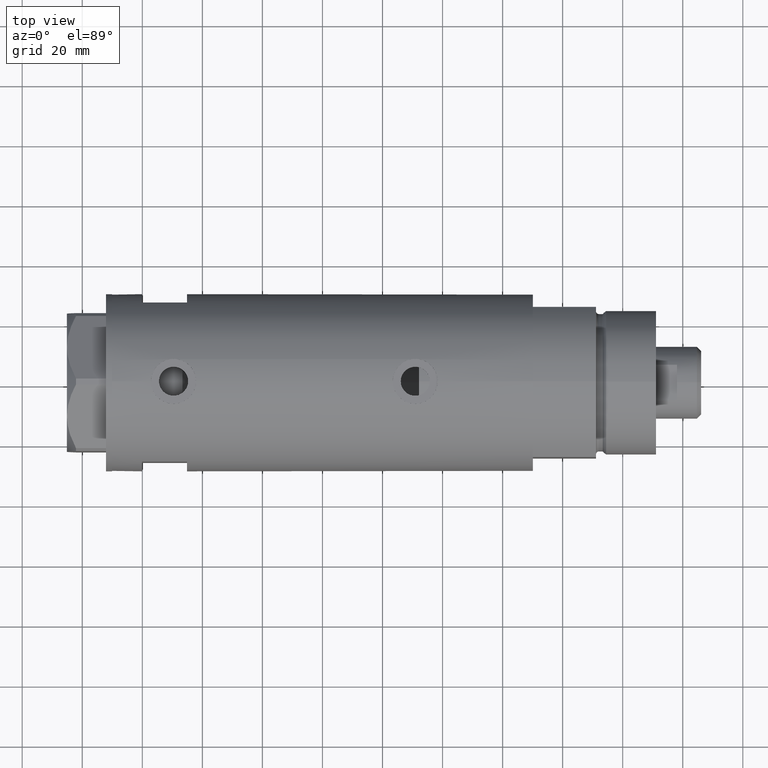
[diagram: clean part render]
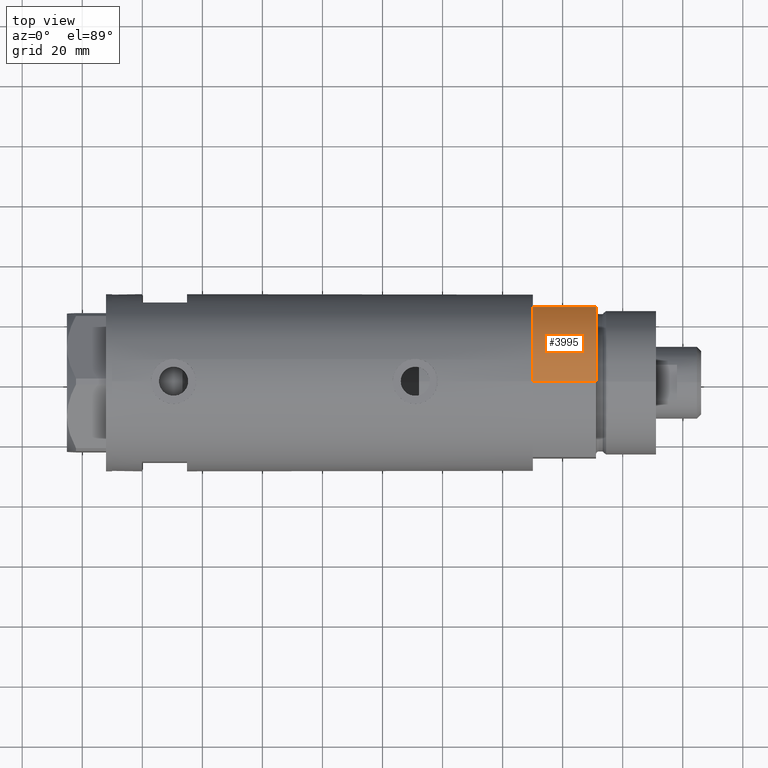
[diagram: same view with one face highlighted and labeled with its STEP entity id]
A machine part, top view. The second image highlights one B-rep face of the part: STEP entity #3995.
In plain terms, the highlighted cylindrical surface (partial cylindrical patch) has radius 29.5 mm, axis along (-1, -0, 0).
Its self-contained STEP definition (entity closure, byte-faithful):
#82 = ORIENTED_EDGE ( 'NONE', *, *, #207, .F. ) ;
#93 = DIRECTION ( 'NONE',  ( 0.000000000000000000, 0.000000000000000000, 1.000000000000000000 ) ) ;
#122 = CARTESIAN_POINT ( 'NONE',  ( 0.000000000000000000, 0.000000000000000000, 0.000000000000000000 ) ) ;
#207 = EDGE_CURVE ( 'NONE', #5011, #321, #4905, .T. ) ;
#279 = CARTESIAN_POINT ( 'NONE',  ( 0.000000000000000000, 0.000000000000000000, 21.00000000000000000 ) ) ;
#321 = VERTEX_POINT ( 'NONE', #2563 ) ;
#500 = DIRECTION ( 'NONE',  ( 1.000000000000000000, 0.000000000000000000, 0.000000000000000000 ) ) ;
#563 = DIRECTION ( 'NONE',  ( -1.000000000000000000, 0.000000000000000000, 0.000000000000000000 ) ) ;
#959 = CIRCLE ( 'NONE', #5346, 29.50000000000000355 ) ;
#1028 = EDGE_CURVE ( 'NONE', #4674, #5262, #2804, .T. ) ;
#2194 = DIRECTION ( 'NONE',  ( 0.000000000000000000, 0.000000000000000000, 1.000000000000000000 ) ) ;
#2353 = DIRECTION ( 'NONE',  ( -0.000000000000000000, -0.000000000000000000, -1.000000000000000000 ) ) ;
#2463 = CIRCLE ( 'NONE', #2663, 29.50000000000000355 ) ;
#2563 = CARTESIAN_POINT ( 'NONE',  ( -15.66045976336583045, 24.99999999999999645, 21.00000000000000355 ) ) ;
#2580 = CARTESIAN_POINT ( 'NONE',  ( -29.50000000000000355, 0.000000000000000000, 0.000000000000000000 ) ) ;
#2657 = EDGE_CURVE ( 'NONE', #5011, #5262, #2463, .T. ) ;
#2663 = AXIS2_PLACEMENT_3D ( 'NONE', #122, #93, #500 ) ;
#2678 = EDGE_LOOP ( 'NONE', ( #5459, #3739, #82, #4580 ) ) ;
#2732 = VECTOR ( 'NONE', #3123, 1000.000000000000000 ) ;
#2804 = LINE ( 'NONE', #3222, #3630 ) ;
#3106 = CARTESIAN_POINT ( 'NONE',  ( -29.50000000000000355, 0.000000000000000000, 21.00000000000000000 ) ) ;
#3123 = DIRECTION ( 'NONE',  ( -0.000000000000000000, -0.000000000000000000, 1.000000000000000000 ) ) ;
#3206 = CARTESIAN_POINT ( 'NONE',  ( -15.66045976336583401, 25.00000000000000000, 0.000000000000000000 ) ) ;
#3222 = CARTESIAN_POINT ( 'NONE',  ( -29.50000000000000355, 0.000000000000000000, 21.00000000000000000 ) ) ;
#3236 = DIRECTION ( 'NONE',  ( 1.000000000000000000, 0.000000000000000000, 0.000000000000000000 ) ) ;
#3347 = CARTESIAN_POINT ( 'NONE',  ( 0.000000000000000000, 0.000000000000000000, 21.00000000000000000 ) ) ;
#3630 = VECTOR ( 'NONE', #2353, 1000.000000000000000 ) ;
#3723 = FACE_OUTER_BOUND ( 'NONE', #2678, .T. ) ;
#3739 = ORIENTED_EDGE ( 'NONE', *, *, #4575, .F. ) ;
#3995 = ADVANCED_FACE ( 'NONE', ( #3723 ), #5529, .T. ) ;
#4381 = CARTESIAN_POINT ( 'NONE',  ( -15.66045976336583401, 25.00000000000000000, 0.000000000000000000 ) ) ;
#4575 = EDGE_CURVE ( 'NONE', #321, #4674, #959, .T. ) ;
#4580 = ORIENTED_EDGE ( 'NONE', *, *, #2657, .T. ) ;
#4674 = VERTEX_POINT ( 'NONE', #3106 ) ;
#4905 = LINE ( 'NONE', #4381, #2732 ) ;
#5011 = VERTEX_POINT ( 'NONE', #3206 ) ;
#5048 = AXIS2_PLACEMENT_3D ( 'NONE', #3347, #5625, #563 ) ;
#5262 = VERTEX_POINT ( 'NONE', #2580 ) ;
#5346 = AXIS2_PLACEMENT_3D ( 'NONE', #279, #2194, #3236 ) ;
#5459 = ORIENTED_EDGE ( 'NONE', *, *, #1028, .F. ) ;
#5529 = CYLINDRICAL_SURFACE ( 'NONE', #5048, 29.50000000000000355 ) ;
#5625 = DIRECTION ( 'NONE',  ( -0.000000000000000000, -0.000000000000000000, -1.000000000000000000 ) ) ;